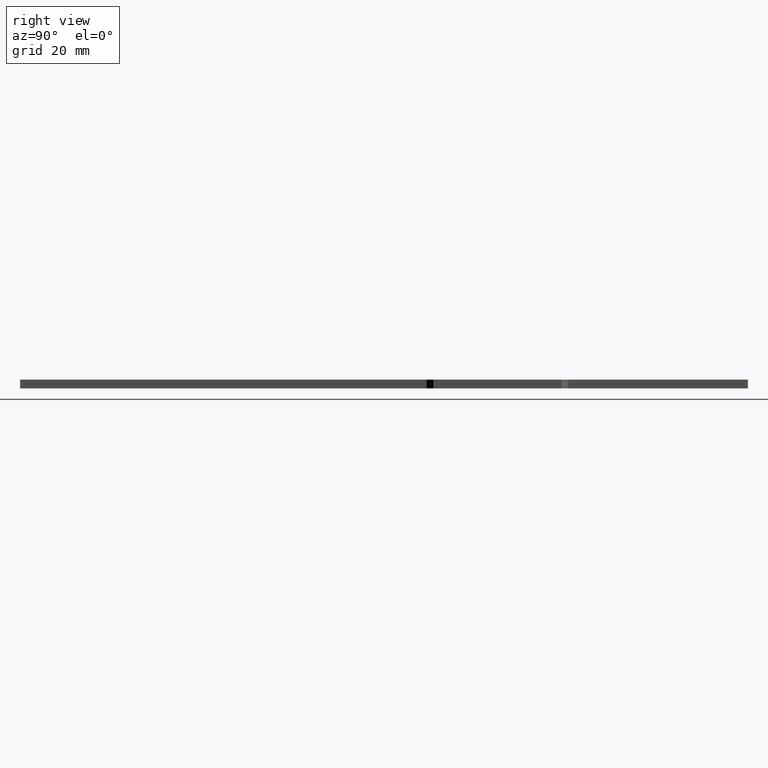
[diagram: clean part render]
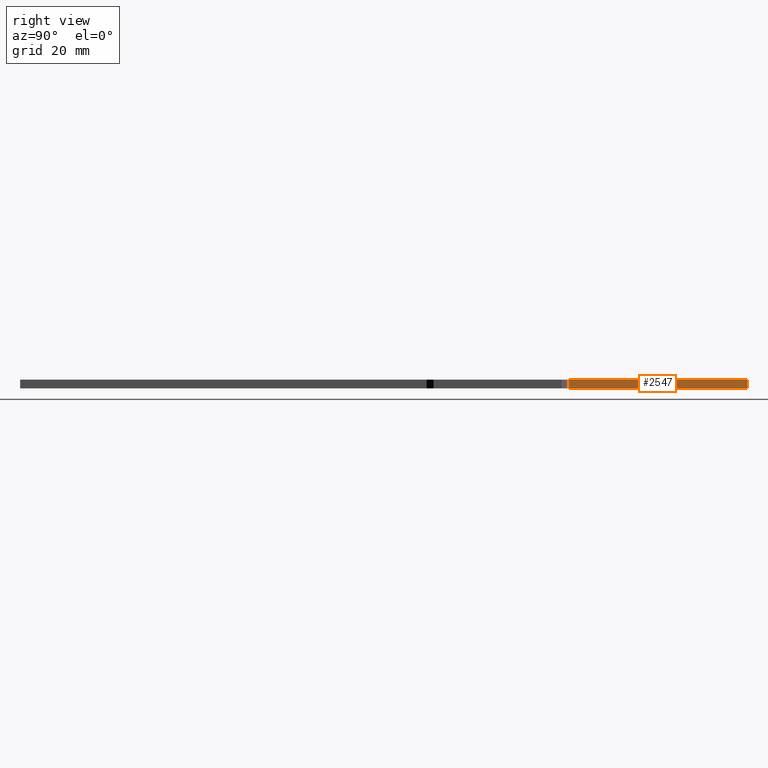
[diagram: same view with one face highlighted and labeled with its STEP entity id]
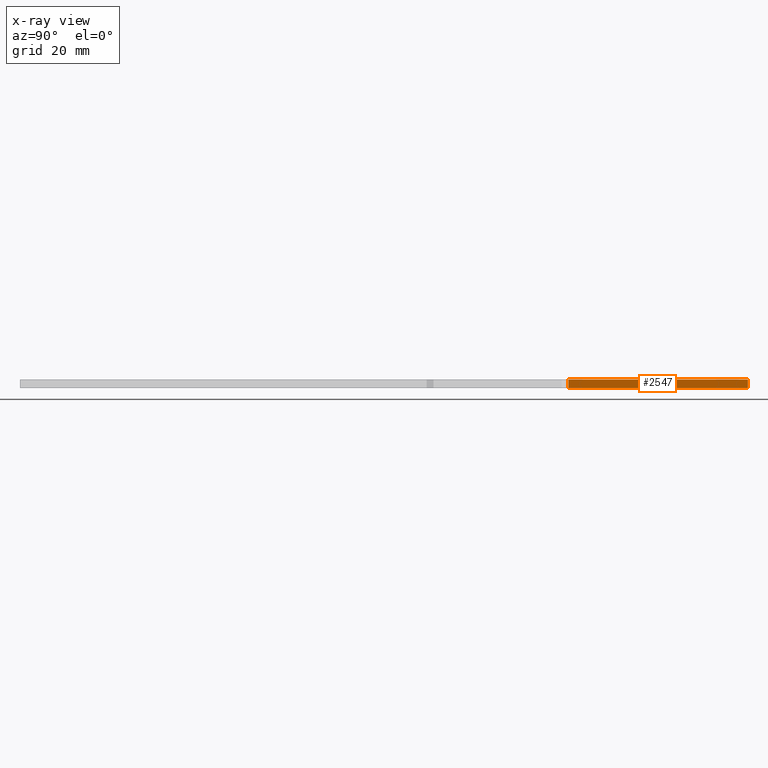
[diagram: x-ray of the same camera — body ghosted, the highlighted face saturated]
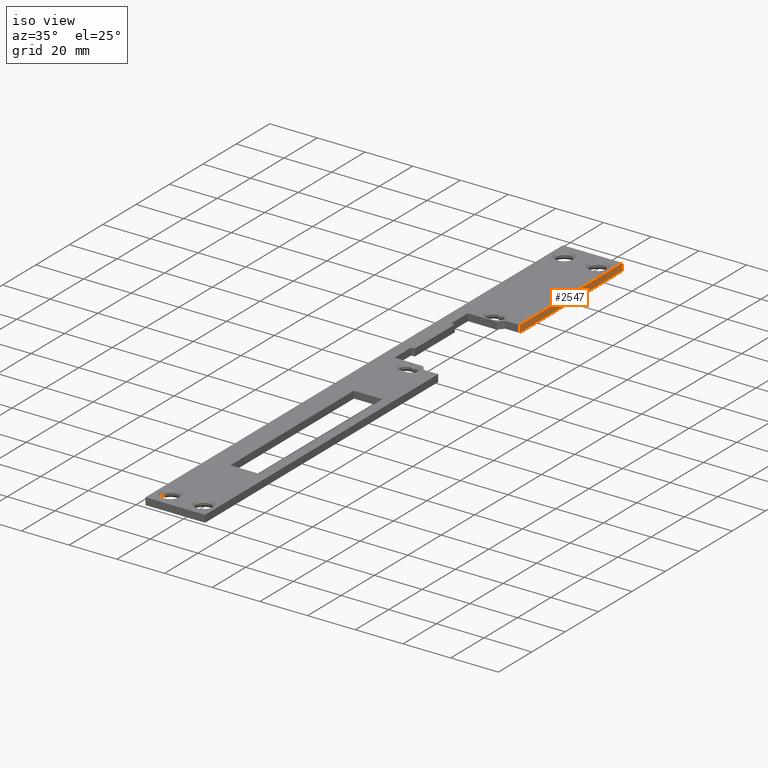
[diagram: same view with one face highlighted and labeled with its STEP entity id]
A machine part, right view. The second image highlights one B-rep face of the part: STEP entity #2547.
The next image is the same camera in x-ray: the body ghosted, the highlighted face saturated — about 0% of this face is hidden behind the body in this view.
A second angle (iso view) of the same face is appended — the face is thin or edge-on in the first view.
In plain terms, the highlighted planar face has unit normal (-1, -0, 0).
Its self-contained STEP definition (entity closure, byte-faithful):
#473 = EDGE_LOOP ( 'NONE', ( #6191, #12501, #4013, #15758 ) ) ;
#1183 = CARTESIAN_POINT ( 'NONE',  ( 12.49999999999998579, 125.0000000000000000, 3.000000000000000000 ) ) ;
#2312 = EDGE_CURVE ( 'NONE', #12970, #5260, #12568, .T. ) ;
#2547 = ADVANCED_FACE ( 'NONE', ( #5479 ), #6380, .F. ) ;
#2650 = VECTOR ( 'NONE', #15358, 1000.000000000000000 ) ;
#2788 = CARTESIAN_POINT ( 'NONE',  ( 12.49999999999998579, 125.0000000000000000, 3.000000000000000000 ) ) ;
#4011 = AXIS2_PLACEMENT_3D ( 'NONE', #7503, #8775, #7710 ) ;
#4013 = ORIENTED_EDGE ( 'NONE', *, *, #2312, .T. ) ;
#4769 = EDGE_CURVE ( 'NONE', #8608, #11313, #7022, .T. ) ;
#5260 = VERTEX_POINT ( 'NONE', #7730 ) ;
#5479 = FACE_OUTER_BOUND ( 'NONE', #473, .T. ) ;
#5716 = CARTESIAN_POINT ( 'NONE',  ( 12.49999999999998579, 125.0000000000000000, 3.000000000000000000 ) ) ;
#5991 = DIRECTION ( 'NONE',  ( -1.249000902703301108E-16, 1.000000000000000000, -0.000000000000000000 ) ) ;
#6191 = ORIENTED_EDGE ( 'NONE', *, *, #4769, .F. ) ;
#6290 = LINE ( 'NONE', #9320, #2650 ) ;
#6380 = PLANE ( 'NONE',  #4011 ) ;
#6527 = DIRECTION ( 'NONE',  ( -0.000000000000000000, -0.000000000000000000, -1.000000000000000000 ) ) ;
#7022 = LINE ( 'NONE', #1183, #8584 ) ;
#7503 = CARTESIAN_POINT ( 'NONE',  ( 12.49999999999998579, 125.0000000000000000, 3.000000000000000000 ) ) ;
#7710 = DIRECTION ( 'NONE',  ( 1.249000902703301108E-16, -1.000000000000000000, 0.000000000000000000 ) ) ;
#7730 = CARTESIAN_POINT ( 'NONE',  ( 12.49999999999998579, 125.0000000000000000, 0.000000000000000000 ) ) ;
#8174 = DIRECTION ( 'NONE',  ( -1.249000902703301108E-16, 1.000000000000000000, -0.000000000000000000 ) ) ;
#8331 = EDGE_CURVE ( 'NONE', #11313, #5260, #14939, .T. ) ;
#8584 = VECTOR ( 'NONE', #5991, 1000.000000000000000 ) ;
#8608 = VERTEX_POINT ( 'NONE', #15475 ) ;
#8775 = DIRECTION ( 'NONE',  ( -1.000000000000000000, -1.249000902703301108E-16, 0.000000000000000000 ) ) ;
#9320 = CARTESIAN_POINT ( 'NONE',  ( 12.50000000000001776, 63.34999999999995879, 0.000000000000000000 ) ) ;
#10604 = CARTESIAN_POINT ( 'NONE',  ( 12.49999999999998579, 125.0000000000000000, 0.000000000000000000 ) ) ;
#11313 = VERTEX_POINT ( 'NONE', #5716 ) ;
#12192 = VECTOR ( 'NONE', #8174, 1000.000000000000000 ) ;
#12501 = ORIENTED_EDGE ( 'NONE', *, *, #13459, .F. ) ;
#12568 = LINE ( 'NONE', #10604, #12192 ) ;
#12970 = VERTEX_POINT ( 'NONE', #12982 ) ;
#12982 = CARTESIAN_POINT ( 'NONE',  ( 12.50000000000001776, 63.34999999999995879, 0.000000000000000000 ) ) ;
#13459 = EDGE_CURVE ( 'NONE', #12970, #8608, #6290, .T. ) ;
#14939 = LINE ( 'NONE', #2788, #15704 ) ;
#15358 = DIRECTION ( 'NONE',  ( -0.000000000000000000, -0.000000000000000000, 1.000000000000000000 ) ) ;
#15475 = CARTESIAN_POINT ( 'NONE',  ( 12.50000000000001776, 63.34999999999995879, 3.000000000000000000 ) ) ;
#15704 = VECTOR ( 'NONE', #6527, 1000.000000000000000 ) ;
#15758 = ORIENTED_EDGE ( 'NONE', *, *, #8331, .F. ) ;